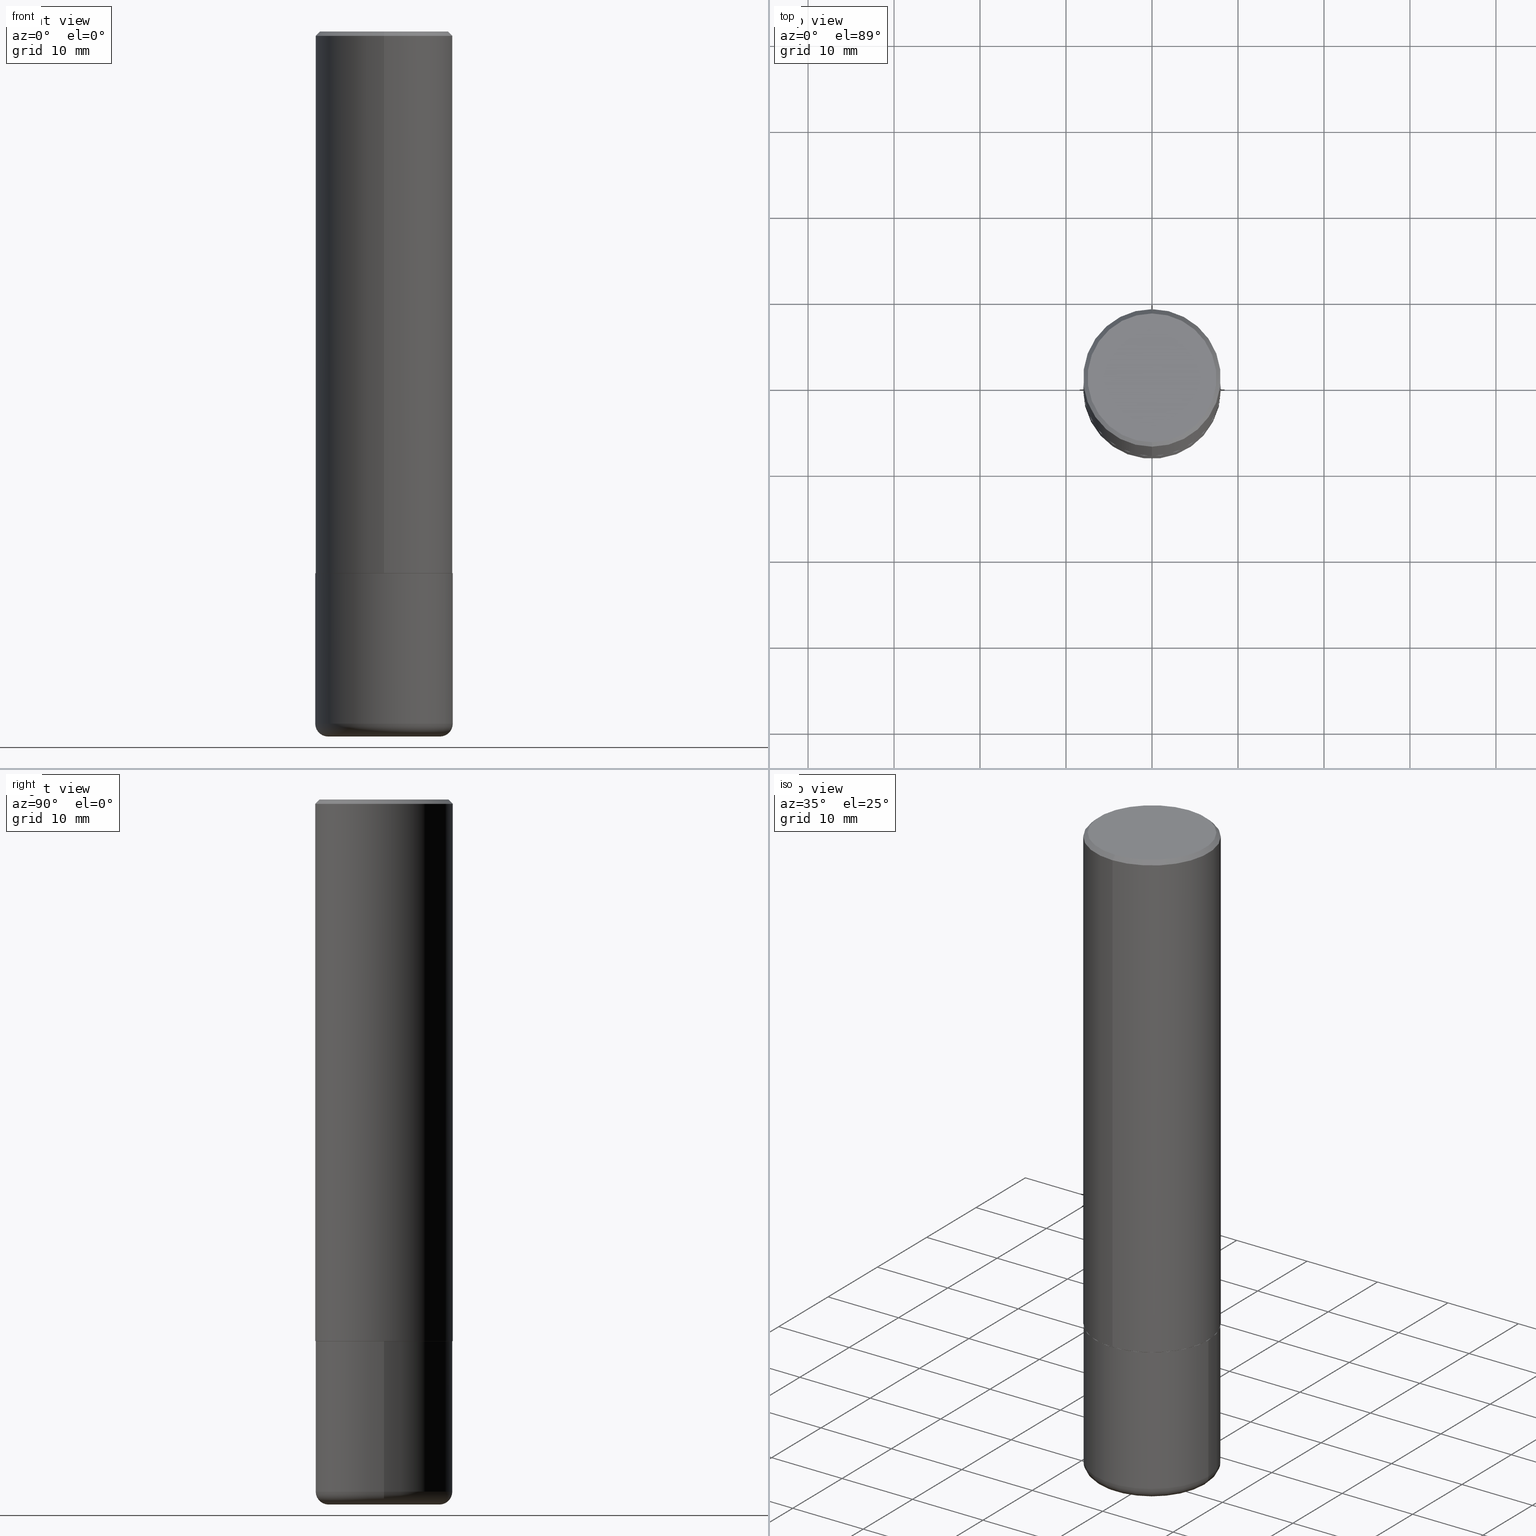
[diagram: canonical four-view strip — front | top / right | iso, engineering-drawing reading convention]
A machine part, canonical four-view strip (front | top / right | iso — engineering-drawing reading convention). The complete STEP part file that produces these views, byte-faithful:
ISO-10303-21;
HEADER;
FILE_DESCRIPTION (( 'STEP AP203' ),
    '1' );
FILE_NAME ('48071.STEP',
    '2024-03-06T19:52:10',
    ( '' ),
    ( '' ),
    'SwSTEP 2.0',
    'SolidWorks 2023',
    '' );
FILE_SCHEMA (( 'CONFIG_CONTROL_DESIGN' ));
ENDSEC;

DATA;
#1 = CARTESIAN_POINT ( 'NONE',  ( -2.199284095337290265E-15, -0.3149500000000001743, 1.101371340450283917E-15 ) ) ;
#2 = CALENDAR_DATE ( 2024, 6, 3 ) ;
#3 = ADVANCED_BREP_SHAPE_REPRESENTATION ( '48071', ( #307, #162, #37 ), #400 ) ;
#4 = PLANE ( 'NONE',  #163 ) ;
#5 = EDGE_CURVE ( 'NONE', #287, #157, #137, .T. ) ;
#6 = CALENDAR_DATE ( 2024, 6, 3 ) ;
#7 = FACE_OUTER_BOUND ( 'NONE', #160, .T. ) ;
#8 = AXIS2_PLACEMENT_3D ( 'NONE', #311, #112, #334 ) ;
#9 = DATE_AND_TIME ( #298, #214 ) ;
#10 = CARTESIAN_POINT ( 'NONE',  ( -0.2558500000000000218, -9.140486964765185399E-15, -3.228299999999999947 ) ) ;
#11 = DATE_AND_TIME ( #387, #303 ) ;
#12 = DIRECTION ( 'NONE',  ( 2.441634677925747084E-29, -3.496972028735619789E-15, -1.000000000000000000 ) ) ;
#13 = CC_DESIGN_DATE_AND_TIME_ASSIGNMENT ( #261, #232, ( #265 ) ) ;
#14 = CARTESIAN_POINT ( 'NONE',  ( 6.065496279980994755E-29, -8.659921164732655335E-15, -2.480300000000000171 ) ) ;
#15 = CIRCLE ( 'NONE', #253, 0.3149499999999999522 ) ;
#16 = CARTESIAN_POINT ( 'NONE',  ( 6.053544856981305662E-29, -8.670042750844224214E-15, -2.479300000000000725 ) ) ;
#17 = CYLINDRICAL_SURFACE ( 'NONE', #336, 0.3149500000000001743 ) ;
#18 = ADVANCED_FACE ( 'NONE', ( #103 ), #36, .T. ) ;
#19 = EDGE_LOOP ( 'NONE', ( #222, #352, #219, #382 ) ) ;
#20 = AXIS2_PLACEMENT_3D ( 'NONE', #195, #390, #166 ) ;
#21 = PRODUCT_DEFINITION_FORMATION_WITH_SPECIFIED_SOURCE ( 'ANY', '', #185, .NOT_KNOWN. ) ;
#22 = APPLICATION_PROTOCOL_DEFINITION ( 'international standard', 'config_control_design', 1994, #88 ) ;
#23 = ORIENTED_EDGE ( 'NONE', *, *, #161, .T. ) ;
#24 = EDGE_CURVE ( 'NONE', #244, #350, #211, .T. ) ;
#25 =( NAMED_UNIT ( * ) PLANE_ANGLE_UNIT ( ) SI_UNIT ( $, .RADIAN. ) );
#26 = DIMENSIONAL_EXPONENTS ( 1.000000000000000000, 0.000000000000000000, 0.000000000000000000, 0.000000000000000000, 0.000000000000000000, 0.000000000000000000, 0.000000000000000000 ) ;
#27 = ORIENTED_EDGE ( 'NONE', *, *, #54, .T. ) ;
#28 = CYLINDRICAL_SURFACE ( 'NONE', #225, 0.3149500000000001743 ) ;
#29 = ORIENTED_EDGE ( 'NONE', *, *, #80, .T. ) ;
#30 = ORIENTED_EDGE ( 'NONE', *, *, #274, .F. ) ;
#31 = ORIENTED_EDGE ( 'NONE', *, *, #241, .T. ) ;
#32 = EDGE_CURVE ( 'NONE', #412, #321, #154, .T. ) ;
#33 = CARTESIAN_POINT ( 'NONE',  ( 4.883269355851518516E-31, -6.993944057471272858E-17, -0.02000000000000009756 ) ) ;
#34 = APPROVAL_STATUS ( 'not_yet_approved' ) ;
#35 = CONICAL_SURFACE ( 'NONE', #341, 0.3139500000000000068, 0.7853981633974141952 ) ;
#36 = CYLINDRICAL_SURFACE ( 'NONE', #82, 0.3149500000000000077 ) ;
#37 = AXIS2_PLACEMENT_3D ( 'NONE', #246, #86, #344 ) ;
#38 = APPROVAL_DATE_TIME ( #331, #273 ) ;
#39 = DIRECTION ( 'NONE',  ( -2.441634677925747084E-29, 3.496972028735619395E-15, 1.000000000000000000 ) ) ;
#40 = CARTESIAN_POINT ( 'NONE',  ( 6.055986491659230581E-29, -8.673539722872958227E-15, -2.480300000000000171 ) ) ;
#41 = DIRECTION ( 'NONE',  ( 6.982962677686265922E-15, 1.000000000000000000, -3.496972028735619395E-15 ) ) ;
#42 = AXIS2_PLACEMENT_3D ( 'NONE', #40, #174, #141 ) ;
#43 = APPROVAL_PERSON_ORGANIZATION ( #392, #273, #300 ) ;
#44 = COORDINATED_UNIVERSAL_TIME_OFFSET ( 5, 0, .BEHIND. ) ;
#45 = LINE ( 'NONE', #270, #147 ) ;
#46 = ADVANCED_FACE ( 'NONE', ( #414 ), #106, .F. ) ;
#47 = CARTESIAN_POINT ( 'NONE',  ( 0.3149499999999999522, -1.326448675439898354E-14, -3.169199999999999573 ) ) ;
#48 = CARTESIAN_POINT ( 'NONE',  ( 2.237854346276435985E-15, 0.3149500000000001743, -1.101371340450283917E-15 ) ) ;
#49 = ORIENTED_EDGE ( 'NONE', *, *, #54, .F. ) ;
#50 = LENGTH_MEASURE_WITH_UNIT ( LENGTH_MEASURE( 0.02539999999999999897 ), #58 );
#51 = EDGE_CURVE ( 'NONE', #319, #385, #315, .T. ) ;
#52 = ORIENTED_EDGE ( 'NONE', *, *, #296, .F. ) ;
#53 = VERTEX_POINT ( 'NONE', #256 ) ;
#54 = EDGE_CURVE ( 'NONE', #405, #282, #105, .T. ) ;
#55 = AXIS2_PLACEMENT_3D ( 'NONE', #16, #238, #369 ) ;
#56 = DIRECTION ( 'NONE',  ( -6.982962677686264344E-15, -1.000000000000000000, 3.496972028735619395E-15 ) ) ;
#57 = EDGE_LOOP ( 'NONE', ( #343, #252, #93, #226 ) ) ;
#58 =( LENGTH_UNIT ( ) NAMED_UNIT ( * ) SI_UNIT ( $, .METRE. ) );
#59 = EDGE_LOOP ( 'NONE', ( #191, #31, #316, #87 ) ) ;
#60 = EDGE_LOOP ( 'NONE', ( #90, #27 ) ) ;
#61 = CIRCLE ( 'NONE', #257, 0.05909999999999992343 ) ;
#62 = CC_DESIGN_APPROVAL ( #273, ( #346 ) ) ;
#63 = DIRECTION ( 'NONE',  ( 1.000000000000000000, -6.982962677686265133E-15, 4.883557194083112340E-29 ) ) ;
#64 = EDGE_CURVE ( 'NONE', #282, #412, #98, .T. ) ;
#65 = LINE ( 'NONE', #1, #132 ) ;
#66 = EDGE_LOOP ( 'NONE', ( #345, #128 ) ) ;
#67 = APPROVAL_ROLE ( '' ) ;
#68 = EDGE_CURVE ( 'NONE', #350, #404, #70, .T. ) ;
#69 = CONICAL_SURFACE ( 'NONE', #206, 0.3149500000000000077, 0.7853981633974452814 ) ;
#70 = LINE ( 'NONE', #355, #360 ) ;
#71 = DIRECTION ( 'NONE',  ( -2.445468806185136597E-29, 3.491481338843145583E-15, 1.000000000000000000 ) ) ;
#72 = CARTESIAN_POINT ( 'NONE',  ( 2.059624841783564852E-15, 0.2949500000000001010, -1.058367491569331424E-15 ) ) ;
#73 = FACE_OUTER_BOUND ( 'NONE', #340, .T. ) ;
#74 = AXIS2_PLACEMENT_3D ( 'NONE', #229, #357, #297 ) ;
#75 = EDGE_CURVE ( 'NONE', #53, #321, #65, .T. ) ;
#76 = APPROVAL_PERSON_ORGANIZATION ( #230, #169, #356 ) ;
#77 = DIRECTION ( 'NONE',  ( 1.000000000000000000, -6.982962677686269866E-15, 0.000000000000000000 ) ) ;
#78 = CARTESIAN_POINT ( 'NONE',  ( 6.055986491659231702E-29, -8.673539722872959805E-15, -2.480300000000001059 ) ) ;
#79 = PRODUCT_DEFINITION_SHAPE ( 'NONE', 'NONE',  #346 ) ;
#80 = EDGE_CURVE ( 'NONE', #287, #94, #264, .T. ) ;
#81 = CARTESIAN_POINT ( 'NONE',  ( 2.237854346276467145E-15, 0.3149499999999916255, -2.479300000000001614 ) ) ;
#82 = AXIS2_PLACEMENT_3D ( 'NONE', #134, #262, #201 ) ;
#83 = AXIS2_PLACEMENT_3D ( 'NONE', #96, #388, #384 ) ;
#84 = DIRECTION ( 'NONE',  ( -2.441634677925747084E-29, 3.496972028735619789E-15, 1.000000000000000000 ) ) ;
#85 = ORIENTED_EDGE ( 'NONE', *, *, #375, .F. ) ;
#86 = DIRECTION ( 'NONE',  ( 0.000000000000000000, 0.000000000000000000, 1.000000000000000000 ) ) ;
#87 = ORIENTED_EDGE ( 'NONE', *, *, #75, .F. ) ;
#88 = APPLICATION_CONTEXT ( 'configuration controlled 3d designs of mechanical parts and assemblies' ) ;
#89 = DIRECTION ( 'NONE',  ( -2.441634677925747084E-29, 3.496972028735619789E-15, 1.000000000000000000 ) ) ;
#90 = ORIENTED_EDGE ( 'NONE', *, *, #393, .T. ) ;
#91 = AXIS2_PLACEMENT_3D ( 'NONE', #181, #146, #401 ) ;
#92 = CARTESIAN_POINT ( 'NONE',  ( 2.199284095337289871E-15, 0.3149499999999999522, -0.02000000000000120084 ) ) ;
#93 = ORIENTED_EDGE ( 'NONE', *, *, #75, .T. ) ;
#94 = VERTEX_POINT ( 'NONE', #130 ) ;
#95 = ADVANCED_FACE ( 'NONE', ( #325 ), #117, .T. ) ;
#96 = CARTESIAN_POINT ( 'NONE',  ( 1.315337494998664914E-45, -1.883860214610447732E-31, -5.387118338752009983E-17 ) ) ;
#97 = CIRCLE ( 'NONE', #354, 0.3149500000000002853 ) ;
#98 = LINE ( 'NONE', #362, #220 ) ;
#99 = PERSON_AND_ORGANIZATION ( #121, #107 ) ;
#100 = DIRECTION ( 'NONE',  ( 5.024295867787889629E-15, 0.7071067811865257013, 0.7071067811865691111 ) ) ;
#101 = ADVANCED_FACE ( 'NONE', ( #234 ), #69, .T. ) ;
#102 = PERSON_AND_ORGANIZATION ( #121, #107 ) ;
#103 = FACE_OUTER_BOUND ( 'NONE', #349, .T. ) ;
#104 = APPROVAL_DATE_TIME ( #263, #169 ) ;
#105 = CIRCLE ( 'NONE', #83, 0.2949500000000001010 ) ;
#106 = PLANE ( 'NONE',  #74 ) ;
#107 = ORGANIZATION ( 'UNSPECIFIED', 'UNSPECIFIED', '' ) ;
#108 = CARTESIAN_POINT ( 'NONE',  ( 0.000000000000000000, 0.000000000000000000, 0.000000000000000000 ) ) ;
#109 = DIRECTION ( 'NONE',  ( 1.000000000000000000, -6.982962677686271444E-15, 0.000000000000000000 ) ) ;
#110 = DIRECTION ( 'NONE',  ( -6.982962677686266711E-15, -1.000000000000000000, 3.491481338843145583E-15 ) ) ;
#111 = CIRCLE ( 'NONE', #194, 0.3149500000000000077 ) ;
#112 = DIRECTION ( 'NONE',  ( -2.441634677925747084E-29, 3.496972028735619789E-15, 1.000000000000000000 ) ) ;
#113 = ADVANCED_FACE ( 'NONE', ( #332 ), #35, .T. ) ;
#114 = CARTESIAN_POINT ( 'NONE',  ( 0.3149500000000000077, -1.085920526006994521E-14, -2.480300000000000171 ) ) ;
#115 = DIRECTION ( 'NONE',  ( 1.000000000000000000, -6.982962677686263555E-15, 0.000000000000000000 ) ) ;
#116 = EDGE_LOOP ( 'NONE', ( #373, #285, #216, #217 ) ) ;
#117 = TOROIDAL_SURFACE ( 'NONE', #372, 0.2558500000000000218, 0.05909999999999992343 ) ;
#118 = ORIENTED_EDGE ( 'NONE', *, *, #68, .T. ) ;
#119 = ORIENTED_EDGE ( 'NONE', *, *, #51, .T. ) ;
#120 = CARTESIAN_POINT ( 'NONE',  ( 1.315337494998664914E-45, -1.883860214610447732E-31, -5.387118338752009983E-17 ) ) ;
#121 = PERSON ( 'UNSPECIFIED', 'UNSPECIFIED', 'UNSPECIFIED', ('UNSPECIFIED'), ('UNSPECIFIED'), ('UNSPECIFIED') ) ;
#122 = APPROVAL ( #142, 'UNSPECIFIED' ) ;
#123 = EDGE_LOOP ( 'NONE', ( #406, #187 ) ) ;
#124 = VECTOR ( 'NONE', #100, 39.37007874015748854 ) ;
#125 = AXIS2_PLACEMENT_3D ( 'NONE', #120, #89, #318 ) ;
#126 = LOCAL_TIME ( 14, 52, 10.00000000000000000, #305 ) ;
#127 = CARTESIAN_POINT ( 'NONE',  ( 0.3149500000000000077, -2.199284095337289871E-15, 1.535751875536930130E-29 ) ) ;
#128 = ORIENTED_EDGE ( 'NONE', *, *, #274, .T. ) ;
#129 = ADVANCED_FACE ( 'NONE', ( #418 ), #4, .T. ) ;
#130 = CARTESIAN_POINT ( 'NONE',  ( -2.192301132659542720E-15, -0.3139500000000086666, -2.480299999999999727 ) ) ;
#131 = CARTESIAN_POINT ( 'NONE',  ( 7.750179740561933543E-29, -1.106520265906169525E-14, -3.169199999999999573 ) ) ;
#132 = VECTOR ( 'NONE', #39, 39.37007874015748143 ) ;
#133 = ADVANCED_FACE ( 'NONE', ( #306 ), #324, .T. ) ;
#134 = CARTESIAN_POINT ( 'NONE',  ( 0.000000000000000000, 0.000000000000000000, 0.000000000000000000 ) ) ;
#135 = CARTESIAN_POINT ( 'NONE',  ( 7.894706947007477118E-29, -1.127154920618732880E-14, -3.228299999999999947 ) ) ;
#136 = PERSON_AND_ORGANIZATION_ROLE ( 'creator' ) ;
#137 = LINE ( 'NONE', #413, #124 ) ;
#138 = AXIS2_PLACEMENT_3D ( 'NONE', #131, #71, #259 ) ;
#139 = DIRECTION ( 'NONE',  ( -2.441634677925747084E-29, 3.496972028735619789E-15, 1.000000000000000000 ) ) ;
#140 = ADVANCED_FACE ( 'NONE', ( #210 ), #271, .T. ) ;
#141 = DIRECTION ( 'NONE',  ( -6.982962677686265922E-15, -1.000000000000000000, 3.496972028735619395E-15 ) ) ;
#142 = APPROVAL_STATUS ( 'not_yet_approved' ) ;
#143 = PRODUCT_RELATED_PRODUCT_CATEGORY ( 'detail', '', ( #185 ) ) ;
#144 = CARTESIAN_POINT ( 'NONE',  ( -0.2558500000000000218, -9.247279069619481135E-15, -3.169200000000000017 ) ) ;
#145 = CLOSED_SHELL ( 'NONE', ( #113, #335, #101, #155, #351, #140, #208, #227 ) ) ;
#146 = DIRECTION ( 'NONE',  ( -2.445468806185136597E-29, 3.491481338843145583E-15, 1.000000000000000000 ) ) ;
#147 = VECTOR ( 'NONE', #215, 39.37007874015748854 ) ;
#148 = DIRECTION ( 'NONE',  ( 2.441634677925746804E-29, -3.496972028735619395E-15, -1.000000000000000000 ) ) ;
#149 = CC_DESIGN_PERSON_AND_ORGANIZATION_ASSIGNMENT ( #102, #197, ( #21 ) ) ;
#150 = DIRECTION ( 'NONE',  ( -2.445468806185136877E-29, 3.491481338843145188E-15, 1.000000000000000000 ) ) ;
#151 = ORIENTED_EDGE ( 'NONE', *, *, #398, .F. ) ;
#152 = APPLICATION_PROTOCOL_DEFINITION ( 'international standard', 'config_control_design', 1994, #283 ) ;
#153 = ORIENTED_EDGE ( 'NONE', *, *, #409, .F. ) ;
#154 = CIRCLE ( 'NONE', #20, 0.3149500000000000077 ) ;
#155 = ADVANCED_FACE ( 'NONE', ( #73 ), #205, .T. ) ;
#156 = CARTESIAN_POINT ( 'NONE',  ( -0.3149499999999999522, -8.827348312785260842E-15, -3.169199999999999573 ) ) ;
#157 = VERTEX_POINT ( 'NONE', #81 ) ;
#158 = ORIENTED_EDGE ( 'NONE', *, *, #51, .F. ) ;
#159 = DIRECTION ( 'NONE',  ( -2.445468806185136597E-29, 3.491481338843145583E-15, 1.000000000000000000 ) ) ;
#160 = EDGE_LOOP ( 'NONE', ( #376, #314, #184, #30 ) ) ;
#161 = EDGE_CURVE ( 'NONE', #385, #244, #61, .T. ) ;
#162 = MANIFOLD_SOLID_BREP ( 'Body-Move/Copy2[2]', #145 ) ;
#163 = AXIS2_PLACEMENT_3D ( 'NONE', #370, #339, #268 ) ;
#164 = CC_DESIGN_APPROVAL ( #169, ( #265 ) ) ;
#165 = ORIENTED_EDGE ( 'NONE', *, *, #409, .T. ) ;
#166 = DIRECTION ( 'NONE',  ( -6.982962677686265922E-15, -1.000000000000000000, 3.496670018878889100E-15 ) ) ;
#167 = DIRECTION ( 'NONE',  ( 2.441634677925747084E-29, -3.496972028735619789E-15, -1.000000000000000000 ) ) ;
#168 = SHAPE_DEFINITION_REPRESENTATION ( #79, #3 ) ;
#169 = APPROVAL ( #34, 'UNSPECIFIED' ) ;
#170 = DIRECTION ( 'NONE',  ( 4.937700262164532265E-15, 0.7071067811865429098, -0.7071067811865521247 ) ) ;
#171 = PERSON_AND_ORGANIZATION_ROLE ( 'creator' ) ;
#172 = CARTESIAN_POINT ( 'NONE',  ( 6.055986491659231702E-29, -8.673539722872959805E-15, -2.480300000000001059 ) ) ;
#173 = SECURITY_CLASSIFICATION_LEVEL ( 'unclassified' ) ;
#174 = DIRECTION ( 'NONE',  ( -2.441634677925746804E-29, 3.496972028735619395E-15, 1.000000000000000000 ) ) ;
#175 = CIRCLE ( 'NONE', #330, 0.05909999999999992343 ) ;
#176 = DIRECTION ( 'NONE',  ( -2.445468806185136597E-29, 3.491481338843145583E-15, 1.000000000000000000 ) ) ;
#177 = LOCAL_TIME ( 14, 52, 10.00000000000000000, #389 ) ;
#178 = COORDINATED_UNIVERSAL_TIME_OFFSET ( 5, 0, .BEHIND. ) ;
#179 = DIRECTION ( 'NONE',  ( -2.445468806185136597E-29, 3.491481338843145583E-15, 1.000000000000000000 ) ) ;
#180 = CARTESIAN_POINT ( 'NONE',  ( 4.883269355851518516E-31, -6.993944057471272858E-17, -0.02000000000000009756 ) ) ;
#181 = CARTESIAN_POINT ( 'NONE',  ( 6.065496279980994755E-29, -8.659921164732655335E-15, -2.480300000000000171 ) ) ;
#182 = CIRCLE ( 'NONE', #410, 0.2558500000000000218 ) ;
#183 = CARTESIAN_POINT ( 'NONE',  ( 0.000000000000000000, 0.000000000000000000, 0.000000000000000000 ) ) ;
#184 = ORIENTED_EDGE ( 'NONE', *, *, #375, .T. ) ;
#185 = PRODUCT ( '48071', '48071', '', ( #277 ) ) ;
#186 = PERSON_AND_ORGANIZATION_ROLE ( 'design_owner' ) ;
#187 = ORIENTED_EDGE ( 'NONE', *, *, #80, .F. ) ;
#188 = AXIS2_PLACEMENT_3D ( 'NONE', #180, #12, #397 ) ;
#189 = CC_DESIGN_PERSON_AND_ORGANIZATION_ASSIGNMENT ( #295, #171, ( #346 ) ) ;
#190 = FACE_OUTER_BOUND ( 'NONE', #57, .T. ) ;
#191 = ORIENTED_EDGE ( 'NONE', *, *, #221, .T. ) ;
#192 = ORIENTED_EDGE ( 'NONE', *, *, #5, .F. ) ;
#193 = VERTEX_POINT ( 'NONE', #114 ) ;
#194 = AXIS2_PLACEMENT_3D ( 'NONE', #14, #176, #77 ) ;
#195 = CARTESIAN_POINT ( 'NONE',  ( 4.883269355851518516E-31, -6.993944057471272858E-17, -0.02000000000000009756 ) ) ;
#196 = DIRECTION ( 'NONE',  ( -6.982962677686266711E-15, -1.000000000000000000, 3.480615376543096919E-15 ) ) ;
#197 = PERSON_AND_ORGANIZATION_ROLE ( 'design_supplier' ) ;
#198 = DIRECTION ( 'NONE',  ( 1.000000000000000000, -6.982962677686263555E-15, 0.000000000000000000 ) ) ;
#199 = PERSON_AND_ORGANIZATION ( #121, #107 ) ;
#200 = VECTOR ( 'NONE', #150, 39.37007874015748143 ) ;
#201 = DIRECTION ( 'NONE',  ( 1.000000000000000000, -6.982962677686266711E-15, 4.876176775795936353E-29 ) ) ;
#202 = EDGE_CURVE ( 'NONE', #319, #350, #175, .T. ) ;
#203 = ORIENTED_EDGE ( 'NONE', *, *, #202, .F. ) ;
#204 = DIRECTION ( 'NONE',  ( 7.105427357601001859E-15, 1.000000000000000000, -3.491481338843145583E-15 ) ) ;
#205 = CONICAL_SURFACE ( 'NONE', #188, 0.3149500000000000077, 0.7853981633974452814 ) ;
#206 = AXIS2_PLACEMENT_3D ( 'NONE', #33, #167, #359 ) ;
#207 = DIRECTION ( 'NONE',  ( -2.441634677925747084E-29, 3.496972028735619395E-15, 1.000000000000000000 ) ) ;
#208 = ADVANCED_FACE ( 'NONE', ( #333 ), #209, .F. ) ;
#209 = PLANE ( 'NONE',  #42 ) ;
#210 = FACE_OUTER_BOUND ( 'NONE', #249, .T. ) ;
#211 = CIRCLE ( 'NONE', #138, 0.3149499999999999522 ) ;
#212 = DIRECTION ( 'NONE',  ( -4.851104656540949287E-15, -0.7071067811865477948, -0.7071067811865472397 ) ) ;
#213 = AXIS2_PLACEMENT_3D ( 'NONE', #135, #291, #198 ) ;
#214 = LOCAL_TIME ( 14, 52, 10.00000000000000000, #361 ) ;
#215 = DIRECTION ( 'NONE',  ( -4.937700262164378437E-15, -0.7071067811865208164, 0.7071067811865739960 ) ) ;
#216 = ORIENTED_EDGE ( 'NONE', *, *, #24, .F. ) ;
#217 = ORIENTED_EDGE ( 'NONE', *, *, #161, .F. ) ;
#218 = PERSON_AND_ORGANIZATION ( #121, #107 ) ;
#219 = ORIENTED_EDGE ( 'NONE', *, *, #221, .F. ) ;
#220 = VECTOR ( 'NONE', #170, 39.37007874015748143 ) ;
#221 = EDGE_CURVE ( 'NONE', #53, #157, #368, .T. ) ;
#222 = ORIENTED_EDGE ( 'NONE', *, *, #328, .T. ) ;
#223 = ORIENTED_EDGE ( 'NONE', *, *, #323, .T. ) ;
#224 = CARTESIAN_POINT ( 'NONE',  ( 7.750179740561934664E-29, -1.106520265906169683E-14, -3.169200000000000017 ) ) ;
#225 = AXIS2_PLACEMENT_3D ( 'NONE', #407, #377, #56 ) ;
#226 = ORIENTED_EDGE ( 'NONE', *, *, #32, .F. ) ;
#227 = ADVANCED_FACE ( 'NONE', ( #338 ), #240, .F. ) ;
#228 = CALENDAR_DATE ( 2024, 6, 3 ) ;
#229 = CARTESIAN_POINT ( 'NONE',  ( 6.065496279980994755E-29, -8.659921164732655335E-15, -2.480300000000000171 ) ) ;
#230 = PERSON_AND_ORGANIZATION ( #121, #107 ) ;
#231 = DIRECTION ( 'NONE',  ( -2.445468806185136877E-29, 3.491481338843145188E-15, 1.000000000000000000 ) ) ;
#232 = DATE_TIME_ROLE ( 'classification_date' ) ;
#233 = VECTOR ( 'NONE', #212, 39.37007874015748143 ) ;
#234 = FACE_OUTER_BOUND ( 'NONE', #276, .T. ) ;
#235 = DIRECTION ( 'NONE',  ( -1.000000000000000000, 7.105427357601001859E-15, 0.000000000000000000 ) ) ;
#236 = CARTESIAN_POINT ( 'NONE',  ( 2.129454468560427362E-15, 0.2949500000000001010, -1.085303083263091523E-15 ) ) ;
#237 = AXIS2_PLACEMENT_3D ( 'NONE', #266, #309, #396 ) ;
#238 = DIRECTION ( 'NONE',  ( -2.441634677925747084E-29, 3.496972028735619789E-15, 1.000000000000000000 ) ) ;
#239 = DIRECTION ( 'NONE',  ( -6.982962677686266711E-15, -1.000000000000000000, 3.480615376543096919E-15 ) ) ;
#240 = PLANE ( 'NONE',  #294 ) ;
#241 = EDGE_CURVE ( 'NONE', #157, #412, #272, .T. ) ;
#242 =( CONVERSION_BASED_UNIT ( 'INCH', #50 ) LENGTH_UNIT ( ) NAMED_UNIT ( #26 ) );
#243 = AXIS2_PLACEMENT_3D ( 'NONE', #78, #371, #239 ) ;
#244 = VERTEX_POINT ( 'NONE', #47 ) ;
#245 = CC_DESIGN_SECURITY_CLASSIFICATION ( #265, ( #21 ) ) ;
#246 = CARTESIAN_POINT ( 'NONE',  ( 0.000000000000000000, 0.000000000000000000, 0.000000000000000000 ) ) ;
#247 = ORIENTED_EDGE ( 'NONE', *, *, #280, .T. ) ;
#248 = CARTESIAN_POINT ( 'NONE',  ( 0.2558500000000000218, -1.305814020727335945E-14, -3.228299999999999947 ) ) ;
#249 = EDGE_LOOP ( 'NONE', ( #192, #29, #223, #52 ) ) ;
#250 = EDGE_CURVE ( 'NONE', #193, #404, #111, .T. ) ;
#251 = DIRECTION ( 'NONE',  ( -2.441634677925747084E-29, 3.496972028735619789E-15, 1.000000000000000000 ) ) ;
#252 = ORIENTED_EDGE ( 'NONE', *, *, #296, .T. ) ;
#253 = AXIS2_PLACEMENT_3D ( 'NONE', #275, #403, #381 ) ;
#254 = CARTESIAN_POINT ( 'NONE',  ( 7.894706947007477118E-29, -1.127154920618732880E-14, -3.228299999999999947 ) ) ;
#255 = EDGE_LOOP ( 'NONE', ( #151, #158 ) ) ;
#256 = CARTESIAN_POINT ( 'NONE',  ( -2.199284095337230706E-15, -0.3149500000000089450, -2.479299999999999393 ) ) ;
#257 = AXIS2_PLACEMENT_3D ( 'NONE', #366, #110, #109 ) ;
#258 = LOCAL_TIME ( 14, 52, 10.00000000000000000, #178 ) ;
#259 = DIRECTION ( 'NONE',  ( 1.000000000000000000, -6.982962677686264344E-15, 0.000000000000000000 ) ) ;
#260 = DIRECTION ( 'NONE',  ( -2.441634677925747084E-29, 3.496972028735619789E-15, 1.000000000000000000 ) ) ;
#261 = DATE_AND_TIME ( #228, #126 ) ;
#262 = DIRECTION ( 'NONE',  ( -2.445468806185136597E-29, 3.491481338843145583E-15, 1.000000000000000000 ) ) ;
#263 = DATE_AND_TIME ( #6, #177 ) ;
#264 = CIRCLE ( 'NONE', #417, 0.3139500000000000068 ) ;
#265 = SECURITY_CLASSIFICATION ( '', '', #173 ) ;
#266 = CARTESIAN_POINT ( 'NONE',  ( 7.750179740561934664E-29, -1.106520265906169683E-14, -3.169200000000000017 ) ) ;
#267 = APPROVAL_DATE_TIME ( #9, #122 ) ;
#268 = DIRECTION ( 'NONE',  ( -1.000000000000000000, 6.982962677686265922E-15, -4.876176775795935793E-29 ) ) ;
#269 = PERSON_AND_ORGANIZATION ( #121, #107 ) ;
#270 = CARTESIAN_POINT ( 'NONE',  ( -2.192301132659542720E-15, -0.3139500000000086666, -2.480299999999999727 ) ) ;
#271 = CONICAL_SURFACE ( 'NONE', #243, 0.3139500000000000068, 0.7853981633974141952 ) ;
#272 = LINE ( 'NONE', #48, #288 ) ;
#273 = APPROVAL ( #358, 'UNSPECIFIED' ) ;
#274 = EDGE_CURVE ( 'NONE', #404, #193, #347, .T. ) ;
#275 = CARTESIAN_POINT ( 'NONE',  ( 7.750179740561933543E-29, -1.106520265906169525E-14, -3.169199999999999573 ) ) ;
#276 = EDGE_LOOP ( 'NONE', ( #49, #165, #247, #290 ) ) ;
#277 = MECHANICAL_CONTEXT ( 'NONE', #283, 'mechanical' ) ;
#278 = AXIS2_PLACEMENT_3D ( 'NONE', #108, #179, #365 ) ;
#279 = ORIENTED_EDGE ( 'NONE', *, *, #386, .F. ) ;
#280 = EDGE_CURVE ( 'NONE', #321, #412, #302, .T. ) ;
#281 = LINE ( 'NONE', #127, #200 ) ;
#282 = VERTEX_POINT ( 'NONE', #236 ) ;
#283 = APPLICATION_CONTEXT ( 'configuration controlled 3d designs of mechanical parts and assemblies' ) ;
#284 = CARTESIAN_POINT ( 'NONE',  ( -2.092108864420428426E-15, -0.2949500000000001010, 9.775607164880511260E-16 ) ) ;
#285 = ORIENTED_EDGE ( 'NONE', *, *, #202, .T. ) ;
#286 = LINE ( 'NONE', #348, #233 ) ;
#287 = VERTEX_POINT ( 'NONE', #402 ) ;
#288 = VECTOR ( 'NONE', #207, 39.37007874015748143 ) ;
#289 = APPROVAL_PERSON_ORGANIZATION ( #199, #122, #67 ) ;
#290 = ORIENTED_EDGE ( 'NONE', *, *, #64, .F. ) ;
#291 = DIRECTION ( 'NONE',  ( -2.445468806185136597E-29, 3.491481338843145583E-15, 1.000000000000000000 ) ) ;
#292 = UNCERTAINTY_MEASURE_WITH_UNIT (LENGTH_MEASURE( 1.000000000000000082E-05 ), #242, 'distance_accuracy_value', 'NONE');
#293 = DIRECTION ( 'NONE',  ( -6.982962677686266711E-15, -1.000000000000000000, 3.480615376543096919E-15 ) ) ;
#294 = AXIS2_PLACEMENT_3D ( 'NONE', #72, #148, #41 ) ;
#295 = PERSON_AND_ORGANIZATION ( #121, #107 ) ;
#296 = EDGE_CURVE ( 'NONE', #157, #53, #97, .T. ) ;
#297 = DIRECTION ( 'NONE',  ( -1.000000000000000000, 6.982962677686265922E-15, -4.876176775795935793E-29 ) ) ;
#298 = CALENDAR_DATE ( 2024, 6, 3 ) ;
#299 = DIRECTION ( 'NONE',  ( -2.441634677925747084E-29, 3.496972028735619789E-15, 1.000000000000000000 ) ) ;
#300 = APPROVAL_ROLE ( '' ) ;
#301 = DIRECTION ( 'NONE',  ( -6.982962677686265922E-15, -1.000000000000000000, 3.469564049740290009E-15 ) ) ;
#302 = CIRCLE ( 'NONE', #8, 0.3149500000000000077 ) ;
#303 = LOCAL_TIME ( 14, 52, 10.00000000000000000, #44 ) ;
#304 = CARTESIAN_POINT ( 'NONE',  ( 6.053544856981305662E-29, -8.670042750844224214E-15, -2.479300000000000725 ) ) ;
#305 = COORDINATED_UNIVERSAL_TIME_OFFSET ( 5, 0, .BEHIND. ) ;
#306 = FACE_OUTER_BOUND ( 'NONE', #116, .T. ) ;
#307 = MANIFOLD_SOLID_BREP ( 'Body-Move/Copy2[1]', #416 ) ;
#308 = CC_DESIGN_PERSON_AND_ORGANIZATION_ASSIGNMENT ( #99, #136, ( #21 ) ) ;
#309 = DIRECTION ( 'NONE',  ( -2.445468806185136597E-29, 3.491481338843145583E-15, 1.000000000000000000 ) ) ;
#310 = CIRCLE ( 'NONE', #125, 0.2949500000000001010 ) ;
#311 = CARTESIAN_POINT ( 'NONE',  ( 4.883269355851518516E-31, -6.993944057471272858E-17, -0.02000000000000009756 ) ) ;
#312 = FACE_OUTER_BOUND ( 'NONE', #59, .T. ) ;
#313 =( NAMED_UNIT ( * ) SI_UNIT ( $, .STERADIAN. ) SOLID_ANGLE_UNIT ( ) );
#314 = ORIENTED_EDGE ( 'NONE', *, *, #386, .T. ) ;
#315 = CIRCLE ( 'NONE', #213, 0.2558500000000000218 ) ;
#316 = ORIENTED_EDGE ( 'NONE', *, *, #280, .F. ) ;
#317 = ADVANCED_FACE ( 'NONE', ( #7 ), #394, .T. ) ;
#318 = DIRECTION ( 'NONE',  ( -6.982962677686265922E-15, -1.000000000000000000, 3.496972028735619395E-15 ) ) ;
#319 = VERTEX_POINT ( 'NONE', #10 ) ;
#320 = CARTESIAN_POINT ( 'NONE',  ( 6.055986491659231702E-29, -8.673539722872959805E-15, -2.480300000000001059 ) ) ;
#321 = VERTEX_POINT ( 'NONE', #337 ) ;
#322 = ORIENTED_EDGE ( 'NONE', *, *, #64, .T. ) ;
#323 = EDGE_CURVE ( 'NONE', #94, #53, #45, .T. ) ;
#324 = TOROIDAL_SURFACE ( 'NONE', #237, 0.2558500000000000218, 0.05909999999999992343 ) ;
#325 = FACE_OUTER_BOUND ( 'NONE', #329, .T. ) ;
#326 = ORIENTED_EDGE ( 'NONE', *, *, #32, .T. ) ;
#327 = DATE_TIME_ROLE ( 'creation_date' ) ;
#328 = EDGE_CURVE ( 'NONE', #94, #287, #399, .T. ) ;
#329 = EDGE_LOOP ( 'NONE', ( #203, #119, #23, #279 ) ) ;
#330 = AXIS2_PLACEMENT_3D ( 'NONE', #144, #204, #235 ) ;
#331 = DATE_AND_TIME ( #2, #258 ) ;
#332 = FACE_OUTER_BOUND ( 'NONE', #19, .T. ) ;
#333 = FACE_OUTER_BOUND ( 'NONE', #123, .T. ) ;
#334 = DIRECTION ( 'NONE',  ( -6.982962677686265922E-15, -1.000000000000000000, 3.496670018878889100E-15 ) ) ;
#335 = ADVANCED_FACE ( 'NONE', ( #312 ), #28, .T. ) ;
#336 = AXIS2_PLACEMENT_3D ( 'NONE', #183, #84, #374 ) ;
#337 = CARTESIAN_POINT ( 'NONE',  ( -2.160713844398143363E-15, -0.3149500000000000632, -0.01999999999999899775 ) ) ;
#338 = FACE_OUTER_BOUND ( 'NONE', #60, .T. ) ;
#339 = DIRECTION ( 'NONE',  ( 2.438088387897960049E-29, -3.491481338843145188E-15, -1.000000000000000000 ) ) ;
#340 = EDGE_LOOP ( 'NONE', ( #153, #378, #322, #326 ) ) ;
#341 = AXIS2_PLACEMENT_3D ( 'NONE', #172, #299, #293 ) ;
#342 = CC_DESIGN_APPROVAL ( #122, ( #21 ) ) ;
#343 = ORIENTED_EDGE ( 'NONE', *, *, #241, .F. ) ;
#344 = DIRECTION ( 'NONE',  ( 1.000000000000000000, 0.000000000000000000, 0.000000000000000000 ) ) ;
#345 = ORIENTED_EDGE ( 'NONE', *, *, #250, .T. ) ;
#346 = PRODUCT_DEFINITION ( 'UNKNOWN', '', #21, #364 ) ;
#347 = CIRCLE ( 'NONE', #91, 0.3149500000000000077 ) ;
#348 = CARTESIAN_POINT ( 'NONE',  ( -2.160713844398143363E-15, -0.3149500000000000632, -0.01999999999999899775 ) ) ;
#349 = EDGE_LOOP ( 'NONE', ( #408, #118, #380, #85 ) ) ;
#350 = VERTEX_POINT ( 'NONE', #156 ) ;
#351 = ADVANCED_FACE ( 'NONE', ( #190 ), #17, .T. ) ;
#352 = ORIENTED_EDGE ( 'NONE', *, *, #5, .T. ) ;
#353 = DIRECTION ( 'NONE',  ( -2.445468806185136597E-29, 3.491481338843145583E-15, 1.000000000000000000 ) ) ;
#354 = AXIS2_PLACEMENT_3D ( 'NONE', #304, #139, #301 ) ;
#355 = CARTESIAN_POINT ( 'NONE',  ( -0.3149500000000000077, 2.237854346276435590E-15, -1.549218606675782676E-29 ) ) ;
#356 = APPROVAL_ROLE ( '' ) ;
#357 = DIRECTION ( 'NONE',  ( 2.438088387897960049E-29, -3.491481338843145188E-15, -1.000000000000000000 ) ) ;
#358 = APPROVAL_STATUS ( 'not_yet_approved' ) ;
#359 = DIRECTION ( 'NONE',  ( 6.982962677686265922E-15, 1.000000000000000000, -3.496670018878889100E-15 ) ) ;
#360 = VECTOR ( 'NONE', #231, 39.37007874015748143 ) ;
#361 = COORDINATED_UNIVERSAL_TIME_OFFSET ( 5, 0, .BEHIND. ) ;
#362 = CARTESIAN_POINT ( 'NONE',  ( 2.199284095337289871E-15, 0.3149499999999999522, -0.02000000000000120084 ) ) ;
#363 = PERSON_AND_ORGANIZATION_ROLE ( 'classification_officer' ) ;
#364 = DESIGN_CONTEXT ( 'detailed design', #88, 'design' ) ;
#365 = DIRECTION ( 'NONE',  ( 1.000000000000000000, -6.982962677686266711E-15, 4.876176775795936353E-29 ) ) ;
#366 = CARTESIAN_POINT ( 'NONE',  ( 0.2558500000000000218, -1.285179366014772748E-14, -3.169200000000000017 ) ) ;
#367 = CC_DESIGN_DATE_AND_TIME_ASSIGNMENT ( #11, #327, ( #346 ) ) ;
#368 = CIRCLE ( 'NONE', #55, 0.3149500000000002853 ) ;
#369 = DIRECTION ( 'NONE',  ( -6.982962677686265922E-15, -1.000000000000000000, 3.469564049740290009E-15 ) ) ;
#370 = CARTESIAN_POINT ( 'NONE',  ( 7.894706947007477118E-29, -1.127154920618732880E-14, -3.228299999999999947 ) ) ;
#371 = DIRECTION ( 'NONE',  ( -2.441634677925747084E-29, 3.496972028735619789E-15, 1.000000000000000000 ) ) ;
#372 = AXIS2_PLACEMENT_3D ( 'NONE', #224, #353, #63 ) ;
#373 = ORIENTED_EDGE ( 'NONE', *, *, #398, .T. ) ;
#374 = DIRECTION ( 'NONE',  ( -6.982962677686264344E-15, -1.000000000000000000, 3.496972028735619395E-15 ) ) ;
#375 = EDGE_CURVE ( 'NONE', #244, #193, #281, .T. ) ;
#376 = ORIENTED_EDGE ( 'NONE', *, *, #68, .F. ) ;
#377 = DIRECTION ( 'NONE',  ( -2.441634677925747084E-29, 3.496972028735619789E-15, 1.000000000000000000 ) ) ;
#378 = ORIENTED_EDGE ( 'NONE', *, *, #393, .F. ) ;
#379 = DIRECTION ( 'NONE',  ( -6.982962677686266711E-15, -1.000000000000000000, 3.480615376543096919E-15 ) ) ;
#380 = ORIENTED_EDGE ( 'NONE', *, *, #250, .F. ) ;
#381 = DIRECTION ( 'NONE',  ( 1.000000000000000000, -6.982962677686264344E-15, 0.000000000000000000 ) ) ;
#382 = ORIENTED_EDGE ( 'NONE', *, *, #323, .F. ) ;
#383 = CARTESIAN_POINT ( 'NONE',  ( 6.055986491659231702E-29, -8.673539722872959805E-15, -2.480300000000001059 ) ) ;
#384 = DIRECTION ( 'NONE',  ( -6.982962677686265922E-15, -1.000000000000000000, 3.496972028735619395E-15 ) ) ;
#385 = VERTEX_POINT ( 'NONE', #248 ) ;
#386 = EDGE_CURVE ( 'NONE', #350, #244, #15, .T. ) ;
#387 = CALENDAR_DATE ( 2024, 6, 3 ) ;
#388 = DIRECTION ( 'NONE',  ( -2.441634677925747084E-29, 3.496972028735619789E-15, 1.000000000000000000 ) ) ;
#389 = COORDINATED_UNIVERSAL_TIME_OFFSET ( 5, 0, .BEHIND. ) ;
#390 = DIRECTION ( 'NONE',  ( -2.441634677925747084E-29, 3.496972028735619789E-15, 1.000000000000000000 ) ) ;
#391 = AXIS2_PLACEMENT_3D ( 'NONE', #320, #251, #379 ) ;
#392 = PERSON_AND_ORGANIZATION ( #121, #107 ) ;
#393 = EDGE_CURVE ( 'NONE', #282, #405, #310, .T. ) ;
#394 = CYLINDRICAL_SURFACE ( 'NONE', #278, 0.3149500000000000077 ) ;
#395 = CC_DESIGN_PERSON_AND_ORGANIZATION_ASSIGNMENT ( #269, #363, ( #265 ) ) ;
#396 = DIRECTION ( 'NONE',  ( 1.000000000000000000, -6.982962677686265133E-15, 4.883557194083112340E-29 ) ) ;
#397 = DIRECTION ( 'NONE',  ( 6.982962677686265922E-15, 1.000000000000000000, -3.496670018878889100E-15 ) ) ;
#398 = EDGE_CURVE ( 'NONE', #385, #319, #182, .T. ) ;
#399 = CIRCLE ( 'NONE', #391, 0.3139500000000000068 ) ;
#400 =( GEOMETRIC_REPRESENTATION_CONTEXT ( 3 ) GLOBAL_UNCERTAINTY_ASSIGNED_CONTEXT ( ( #292 ) ) GLOBAL_UNIT_ASSIGNED_CONTEXT ( ( #242, #25, #313 ) ) REPRESENTATION_CONTEXT ( 'NONE', 'WORKASPACE' ) );
#401 = DIRECTION ( 'NONE',  ( 1.000000000000000000, -6.982962677686269866E-15, 0.000000000000000000 ) ) ;
#402 = CARTESIAN_POINT ( 'NONE',  ( 2.234301632597695829E-15, 0.3139499999999913471, -2.480300000000001948 ) ) ;
#403 = DIRECTION ( 'NONE',  ( -2.445468806185136597E-29, 3.491481338843145583E-15, 1.000000000000000000 ) ) ;
#404 = VERTEX_POINT ( 'NONE', #411 ) ;
#405 = VERTEX_POINT ( 'NONE', #284 ) ;
#406 = ORIENTED_EDGE ( 'NONE', *, *, #328, .F. ) ;
#407 = CARTESIAN_POINT ( 'NONE',  ( 0.000000000000000000, 0.000000000000000000, 0.000000000000000000 ) ) ;
#408 = ORIENTED_EDGE ( 'NONE', *, *, #24, .T. ) ;
#409 = EDGE_CURVE ( 'NONE', #405, #321, #286, .T. ) ;
#410 = AXIS2_PLACEMENT_3D ( 'NONE', #254, #159, #115 ) ;
#411 = CARTESIAN_POINT ( 'NONE',  ( -0.3149500000000000077, -7.624707565620739308E-15, -2.480300000000000171 ) ) ;
#412 = VERTEX_POINT ( 'NONE', #92 ) ;
#413 = CARTESIAN_POINT ( 'NONE',  ( 2.230748918918894930E-15, 0.3139499999999913471, -2.480300000000001948 ) ) ;
#414 = FACE_OUTER_BOUND ( 'NONE', #66, .T. ) ;
#415 = CC_DESIGN_PERSON_AND_ORGANIZATION_ASSIGNMENT ( #218, #186, ( #185 ) ) ;
#416 = CLOSED_SHELL ( 'NONE', ( #18, #133, #46, #317, #95, #129 ) ) ;
#417 = AXIS2_PLACEMENT_3D ( 'NONE', #383, #260, #196 ) ;
#418 = FACE_OUTER_BOUND ( 'NONE', #255, .T. ) ;
ENDSEC;
END-ISO-10303-21;
